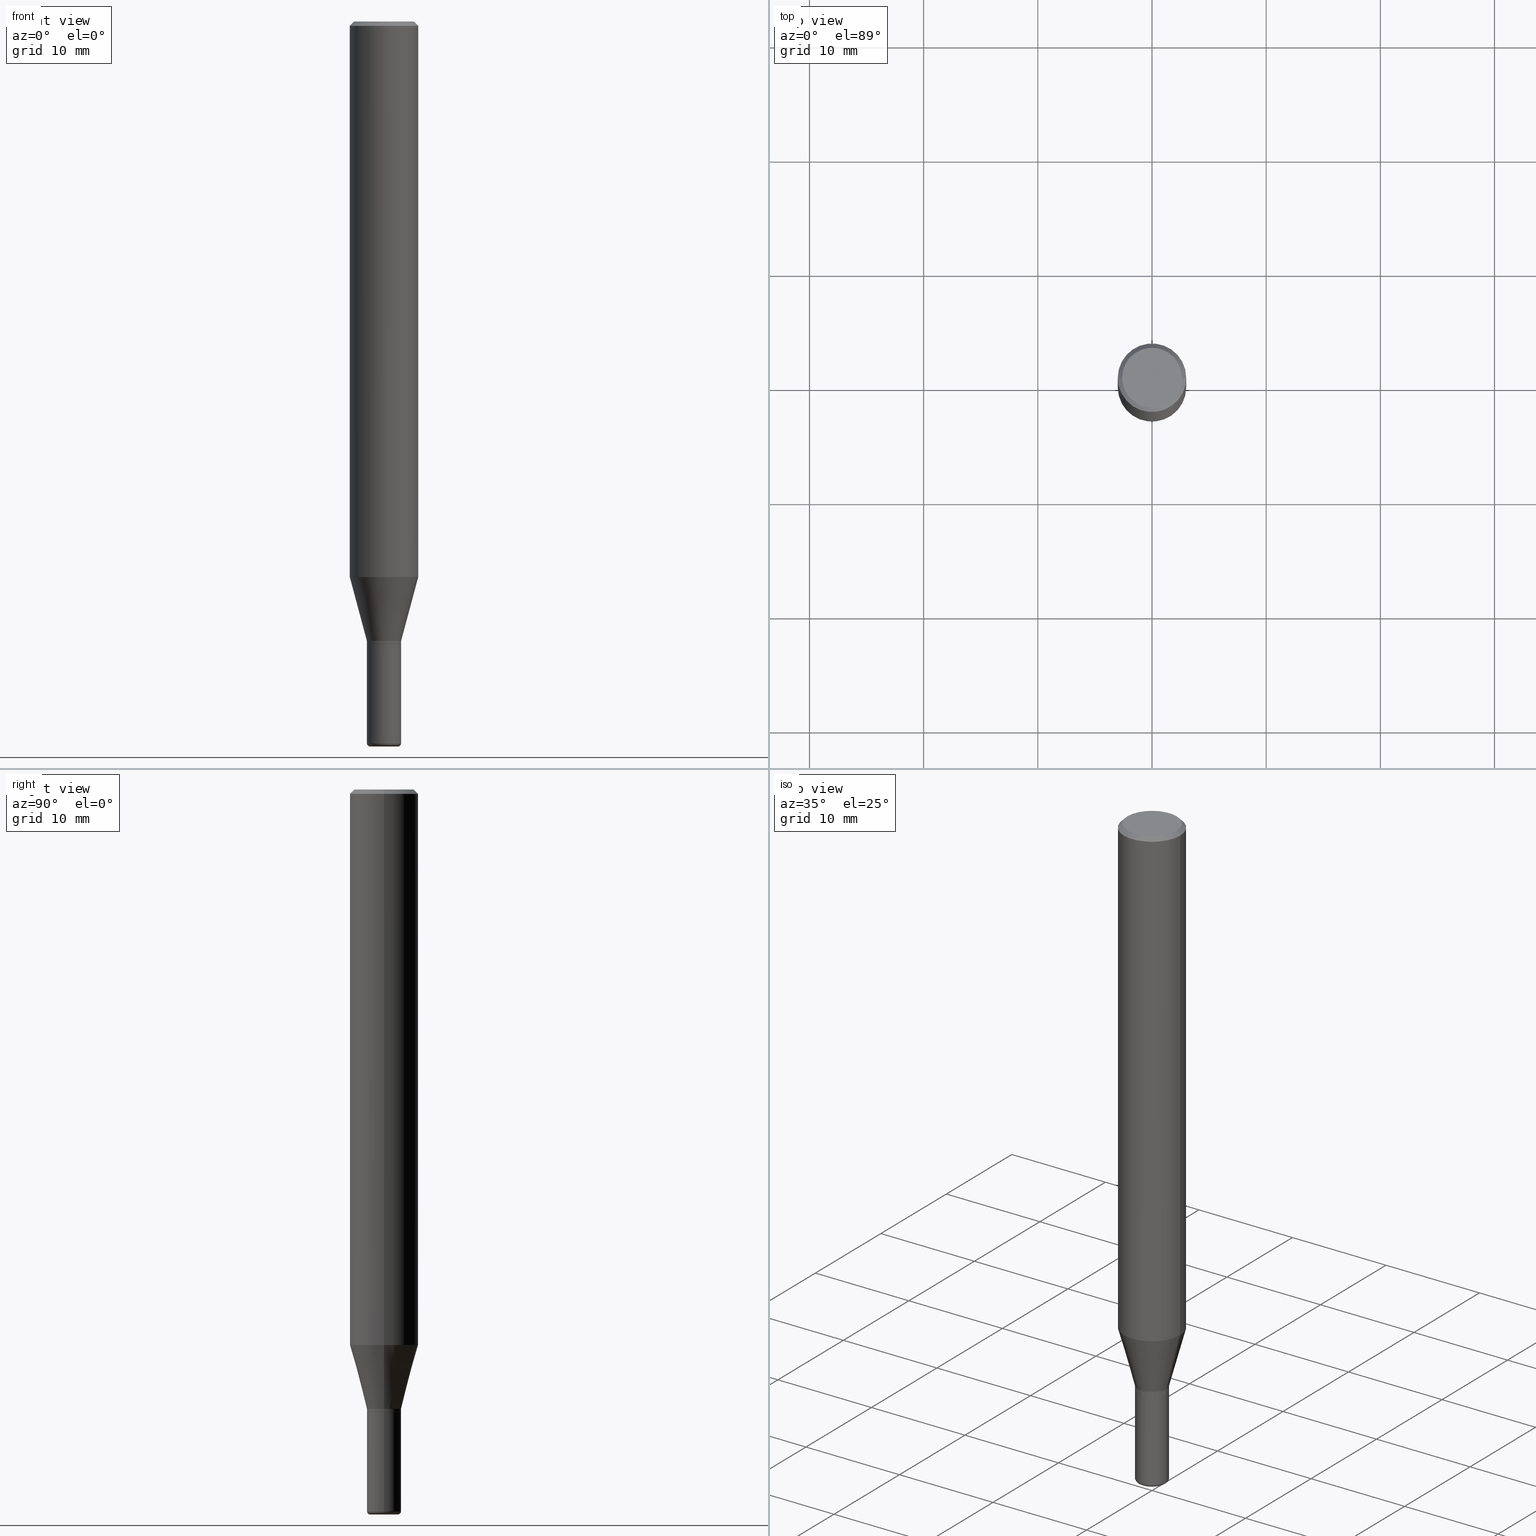
[diagram: canonical four-view strip — front | top / right | iso, engineering-drawing reading convention]
A machine part, canonical four-view strip (front | top / right | iso — engineering-drawing reading convention). The complete STEP part file that produces these views, byte-faithful:
ISO-10303-21;
HEADER;
FILE_DESCRIPTION (( 'STEP AP203' ),
    '1' );
FILE_NAME ('05363.STEP',
    '2024-02-29T19:38:18',
    ( '' ),
    ( '' ),
    'SwSTEP 2.0',
    'SolidWorks 2023',
    '' );
FILE_SCHEMA (( 'CONFIG_CONTROL_DESIGN' ));
ENDSEC;

DATA;
#1 = VERTEX_POINT ( 'NONE', #14 ) ;
#2 = CALENDAR_DATE ( 2024, 29, 2 ) ;
#3 = DIRECTION ( 'NONE',  ( 1.000000000000000000, -6.982962677686265133E-15, 0.000000000000000000 ) ) ;
#4 = AXIS2_PLACEMENT_3D ( 'NONE', #174, #138, #466 ) ;
#5 = MANIFOLD_SOLID_BREP ( 'Body-Move/Copy2[1]', #63 ) ;
#6 = ORIENTED_EDGE ( 'NONE', *, *, #321, .T. ) ;
#7 = APPROVAL_PERSON_ORGANIZATION ( #98, #360, #214 ) ;
#8 = DIRECTION ( 'NONE',  ( -2.445468806185136597E-29, 3.491481338843145583E-15, 1.000000000000000000 ) ) ;
#9 = ORIENTED_EDGE ( 'NONE', *, *, #379, .F. ) ;
#10 = DIRECTION ( 'NONE',  ( -2.445468806185136597E-29, 3.491481338843145583E-15, 1.000000000000000000 ) ) ;
#11 = CARTESIAN_POINT ( 'NONE',  ( 5.247242417431447608E-29, -7.491671508755737816E-15, -2.145700000000000163 ) ) ;
#12 = DIRECTION ( 'NONE',  ( 1.000000000000000000, -6.982962677686273021E-15, 0.000000000000000000 ) ) ;
#13 = AXIS2_PLACEMENT_3D ( 'NONE', #356, #517, #236 ) ;
#14 = CARTESIAN_POINT ( 'NONE',  ( -0.05855000000000004645, -7.072999509794088809E-15, -2.145700000000000163 ) ) ;
#15 = CC_DESIGN_APPROVAL ( #411, ( #240 ) ) ;
#16 = DIRECTION ( 'NONE',  ( -6.982962677686266711E-15, -1.000000000000000000, 3.491481338843145583E-15 ) ) ;
#17 = DIRECTION ( 'NONE',  ( 1.000000000000000000, -6.982962677686266711E-15, 4.876176775795935232E-29 ) ) ;
#18 = COORDINATED_UNIVERSAL_TIME_OFFSET ( 5, 0, .BEHIND. ) ;
#19 = CC_DESIGN_PERSON_AND_ORGANIZATION_ASSIGNMENT ( #396, #36, ( #136 ) ) ;
#20 = ADVANCED_FACE ( 'NONE', ( #483 ), #345, .T. ) ;
#21 = ORGANIZATION ( 'UNSPECIFIED', 'UNSPECIFIED', '' ) ;
#22 = DIRECTION ( 'NONE',  ( 0.000000000000000000, 0.000000000000000000, 1.000000000000000000 ) ) ;
#23 = DIRECTION ( 'NONE',  ( -2.445468806185136597E-29, 3.491481338843145583E-15, 1.000000000000000000 ) ) ;
#24 = APPROVAL ( #484, 'UNSPECIFIED' ) ;
#25 = FACE_OUTER_BOUND ( 'NONE', #195, .T. ) ;
#26 = CONICAL_SURFACE ( 'NONE', #325, 0.05905000000000002608, 0.2617993877991494633 ) ;
#27 = VECTOR ( 'NONE', #289, 39.37007874015748854 ) ;
#28 = DIRECTION ( 'NONE',  ( -2.445468806185136877E-29, 3.491481338843145188E-15, 1.000000000000000000 ) ) ;
#29 = AXIS2_PLACEMENT_3D ( 'NONE', #50, #8, #161 ) ;
#30 = CARTESIAN_POINT ( 'NONE',  ( 0.1180999999999999966, -7.512000309050311391E-15, -1.915322399813057963 ) ) ;
#31 = DIRECTION ( 'NONE',  ( 1.000000000000000000, -6.982962677686265133E-15, 4.883557194083112901E-29 ) ) ;
#32 = EDGE_LOOP ( 'NONE', ( #282, #206, #73, #330 ) ) ;
#33 = DIRECTION ( 'NONE',  ( -2.445468806185136877E-29, 3.491481338843145188E-15, 1.000000000000000000 ) ) ;
#34 = ORIENTED_EDGE ( 'NONE', *, *, #286, .F. ) ;
#35 = ADVANCED_FACE ( 'NONE', ( #216 ), #491, .T. ) ;
#36 = PERSON_AND_ORGANIZATION_ROLE ( 'design_supplier' ) ;
#37 = DIRECTION ( 'NONE',  ( 1.000000000000000000, -6.982962677686265133E-15, 4.883557194083112901E-29 ) ) ;
#38 = ORIENTED_EDGE ( 'NONE', *, *, #95, .T. ) ;
#39 = CC_DESIGN_PERSON_AND_ORGANIZATION_ASSIGNMENT ( #218, #217, ( #347 ) ) ;
#40 = EDGE_LOOP ( 'NONE', ( #38, #64, #70, #474 ) ) ;
#41 = CARTESIAN_POINT ( 'NONE',  ( 5.247242417431447608E-29, -7.491671508755737816E-15, -2.145700000000000163 ) ) ;
#42 = EDGE_LOOP ( 'NONE', ( #317, #149 ) ) ;
#43 = DIRECTION ( 'NONE',  ( -2.445468806185136597E-29, 3.491481338843145583E-15, 1.000000000000000000 ) ) ;
#44 = CARTESIAN_POINT ( 'NONE',  ( 0.05905000000000033833, -9.099847813426891590E-15, -2.488199999999999967 ) ) ;
#45 = ORIENTED_EDGE ( 'NONE', *, *, #499, .T. ) ;
#46 = EDGE_CURVE ( 'NONE', #54, #127, #333, .T. ) ;
#47 = PLANE ( 'NONE',  #299 ) ;
#48 = DIRECTION ( 'NONE',  ( 0.7071067811865483499, -7.319954787623257623E-15, -0.7071067811865466846 ) ) ;
#49 = CALENDAR_DATE ( 2024, 29, 2 ) ;
#50 = CARTESIAN_POINT ( 'NONE',  ( 0.000000000000000000, 0.000000000000000000, 0.000000000000000000 ) ) ;
#51 = EDGE_LOOP ( 'NONE', ( #354, #438, #368, #481 ) ) ;
#52 = CARTESIAN_POINT ( 'NONE',  ( 5.222787729369597184E-29, -7.456756695367306166E-15, -2.135699999999999932 ) ) ;
#53 = AXIS2_PLACEMENT_3D ( 'NONE', #181, #274, #426 ) ;
#54 = VERTEX_POINT ( 'NONE', #303 ) ;
#55 = DIRECTION ( 'NONE',  ( -0.2588190451025207395, 5.211531920934546309E-15, 0.9659258262890682012 ) ) ;
#56 =( CONVERSION_BASED_UNIT ( 'INCH', #518 ) LENGTH_UNIT ( ) NAMED_UNIT ( #79 ) );
#57 = CARTESIAN_POINT ( 'NONE',  ( 4.123439461174264426E-16, 0.05904999999999250432, -2.145700000000000163 ) ) ;
#58 = APPROVAL_DATE_TIME ( #91, #360 ) ;
#59 = AXIS2_PLACEMENT_3D ( 'NONE', #506, #193, #229 ) ;
#60 = CARTESIAN_POINT ( 'NONE',  ( 0.05905000000000005383, -7.902269714203691232E-15, -2.145200000000000440 ) ) ;
#61 = CIRCLE ( 'NONE', #359, 0.01180000000000034494 ) ;
#62 = APPROVAL_ROLE ( '' ) ;
#63 = CLOSED_SHELL ( 'NONE', ( #178, #210, #242, #35, #508, #387 ) ) ;
#64 = ORIENTED_EDGE ( 'NONE', *, *, #163, .T. ) ;
#65 = CONICAL_SURFACE ( 'NONE', #212, 0.1180999999999999966, 0.7853981633974495002 ) ;
#66 = PRODUCT_RELATED_PRODUCT_CATEGORY ( 'detail', '', ( #347 ) ) ;
#67 = DIRECTION ( 'NONE',  ( -2.445468806185136597E-29, 3.491481338843145583E-15, 1.000000000000000000 ) ) ;
#68 = ORIENTED_EDGE ( 'NONE', *, *, #351, .T. ) ;
#69 = DIRECTION ( 'NONE',  ( -2.445468806185136597E-29, 3.491481338843145583E-15, 1.000000000000000000 ) ) ;
#70 = ORIENTED_EDGE ( 'NONE', *, *, #294, .F. ) ;
#71 = DATE_AND_TIME ( #2, #399 ) ;
#72 = CARTESIAN_POINT ( 'NONE',  ( -0.05905000000000017180, 4.195754854663403804E-16, -2.904631170795530300E-30 ) ) ;
#73 = ORIENTED_EDGE ( 'NONE', *, *, #177, .T. ) ;
#74 = ADVANCED_FACE ( 'NONE', ( #373 ), #26, .T. ) ;
#75 = AXIS2_PLACEMENT_3D ( 'NONE', #292, #43, #3 ) ;
#76 = ORIENTED_EDGE ( 'NONE', *, *, #488, .T. ) ;
#77 = ORIENTED_EDGE ( 'NONE', *, *, #257, .F. ) ;
#78 = LINE ( 'NONE', #338, #221 ) ;
#79 = DIMENSIONAL_EXPONENTS ( 1.000000000000000000, 0.000000000000000000, 0.000000000000000000, 0.000000000000000000, 0.000000000000000000, 0.000000000000000000, 0.000000000000000000 ) ;
#80 = ORIENTED_EDGE ( 'NONE', *, *, #316, .T. ) ;
#81 = FACE_OUTER_BOUND ( 'NONE', #32, .T. ) ;
#82 = VERTEX_POINT ( 'NONE', #453 ) ;
#83 = CARTESIAN_POINT ( 'NONE',  ( -0.05905000000000002608, -6.442671327891926197E-15, -2.135699999999999932 ) ) ;
#84 = EDGE_CURVE ( 'NONE', #389, #322, #494, .T. ) ;
#85 = CARTESIAN_POINT ( 'NONE',  ( 0.000000000000000000, 0.000000000000000000, 0.000000000000000000 ) ) ;
#86 = DIRECTION ( 'NONE',  ( -2.445468806185136597E-29, 3.491481338843145583E-15, 1.000000000000000000 ) ) ;
#87 = EDGE_CURVE ( 'NONE', #1, #241, #468, .T. ) ;
#88 = ORIENTED_EDGE ( 'NONE', *, *, #391, .T. ) ;
#89 = ADVANCED_FACE ( 'NONE', ( #93 ), #418, .T. ) ;
#90 = DIRECTION ( 'NONE',  ( -2.445468806185136597E-29, 3.491481338843145583E-15, 1.000000000000000000 ) ) ;
#91 = DATE_AND_TIME ( #455, #340 ) ;
#92 = AXIS2_PLACEMENT_3D ( 'NONE', #465, #196, #37 ) ;
#93 = FACE_OUTER_BOUND ( 'NONE', #146, .T. ) ;
#94 = TOROIDAL_SURFACE ( 'NONE', #283, 0.04724999999999999339, 0.01180000000000034494 ) ;
#95 = EDGE_CURVE ( 'NONE', #487, #410, #155, .T. ) ;
#96 = APPLICATION_PROTOCOL_DEFINITION ( 'international standard', 'config_control_design', 1994, #436 ) ;
#97 = CARTESIAN_POINT ( 'NONE',  ( 0.1180999999999999966, -8.246878922347480654E-16, 5.758764772215000440E-30 ) ) ;
#98 = PERSON_AND_ORGANIZATION ( #377, #21 ) ;
#99 = AXIS2_PLACEMENT_3D ( 'NONE', #231, #189, #117 ) ;
#100 = DIRECTION ( 'NONE',  ( 1.000000000000000000, -6.982962677686266711E-15, 0.000000000000000000 ) ) ;
#101 = VECTOR ( 'NONE', #288, 39.37007874015748143 ) ;
#102 = FACE_OUTER_BOUND ( 'NONE', #211, .T. ) ;
#103 = CARTESIAN_POINT ( 'NONE',  ( 5.222787729369597184E-29, -7.456756695367306166E-15, -2.135699999999999932 ) ) ;
#104 = EDGE_CURVE ( 'NONE', #443, #232, #428, .T. ) ;
#105 = ADVANCED_FACE ( 'NONE', ( #497 ), #353, .T. ) ;
#106 = ORIENTED_EDGE ( 'NONE', *, *, #461, .T. ) ;
#107 = LOCAL_TIME ( 14, 38, 18.00000000000000000, #239 ) ;
#108 = CARTESIAN_POINT ( 'NONE',  ( 5.247242417431447608E-29, -7.491671508755737816E-15, -2.145700000000000163 ) ) ;
#109 = EDGE_LOOP ( 'NONE', ( #509, #435, #366, #252 ) ) ;
#110 = LINE ( 'NONE', #145, #463 ) ;
#111 = VERTEX_POINT ( 'NONE', #346 ) ;
#112 = DIRECTION ( 'NONE',  ( 1.000000000000000000, -6.982962677686258822E-15, 0.000000000000000000 ) ) ;
#113 = ORIENTED_EDGE ( 'NONE', *, *, #142, .F. ) ;
#114 = AXIS2_PLACEMENT_3D ( 'NONE', #85, #169, #342 ) ;
#115 = AXIS2_PLACEMENT_3D ( 'NONE', #141, #312, #100 ) ;
#116 = DIRECTION ( 'NONE',  ( 1.000000000000000000, -6.982962677686258822E-15, 0.000000000000000000 ) ) ;
#117 = DIRECTION ( 'NONE',  ( -1.000000000000000000, 6.982962677686265922E-15, -4.876176775795935793E-29 ) ) ;
#118 = ORIENTED_EDGE ( 'NONE', *, *, #273, .F. ) ;
#119 = DATE_TIME_ROLE ( 'creation_date' ) ;
#120 = ADVANCED_FACE ( 'NONE', ( #265 ), #376, .T. ) ;
#121 = ORIENTED_EDGE ( 'NONE', *, *, #177, .F. ) ;
#122 = FACE_OUTER_BOUND ( 'NONE', #165, .T. ) ;
#123 = CARTESIAN_POINT ( 'NONE',  ( -0.1180999999999999966, 7.723156721521010848E-16, -0.01499999999999995781 ) ) ;
#124 = APPROVAL_ROLE ( '' ) ;
#125 = AXIS2_PLACEMENT_3D ( 'NONE', #108, #67, #112 ) ;
#126 = DIRECTION ( 'NONE',  ( 1.000000000000000000, -6.982962677686343230E-15, 0.000000000000000000 ) ) ;
#127 = VERTEX_POINT ( 'NONE', #175 ) ;
#128 = CIRCLE ( 'NONE', #424, 0.1180999999999999966 ) ;
#129 = CARTESIAN_POINT ( 'NONE',  ( 0.04724999999999999339, -9.058648333628542528E-15, -2.500000000000000444 ) ) ;
#130 = DIRECTION ( 'NONE',  ( -2.445468806185136597E-29, 3.491481338843145583E-15, 1.000000000000000000 ) ) ;
#131 = CARTESIAN_POINT ( 'NONE',  ( 5.246019683028355928E-29, -7.489925768086317101E-15, -2.145200000000000440 ) ) ;
#132 = DIRECTION ( 'NONE',  ( -2.445468806185136597E-29, 3.491481338843145583E-15, 1.000000000000000000 ) ) ;
#133 = DATE_AND_TIME ( #49, #205 ) ;
#134 = AXIS2_PLACEMENT_3D ( 'NONE', #305, #132, #456 ) ;
#135 = CIRCLE ( 'NONE', #256, 0.04724999999999999339 ) ;
#136 = PRODUCT_DEFINITION_FORMATION_WITH_SPECIFIED_SOURCE ( 'ANY', '', #347, .NOT_KNOWN. ) ;
#137 = COORDINATED_UNIVERSAL_TIME_OFFSET ( 5, 0, .BEHIND. ) ;
#138 = DIRECTION ( 'NONE',  ( -2.438088387897960049E-29, 3.491481338843145188E-15, 1.000000000000000000 ) ) ;
#139 = DIRECTION ( 'NONE',  ( -1.000000000000000000, 6.982962677686266711E-15, 0.000000000000000000 ) ) ;
#140 = APPLICATION_CONTEXT ( 'configuration controlled 3d designs of mechanical parts and assemblies' ) ;
#141 = CARTESIAN_POINT ( 'NONE',  ( 3.668203209277694140E-31, -5.237222008264703607E-17, -0.01499999999999995781 ) ) ;
#142 = EDGE_CURVE ( 'NONE', #319, #322, #311, .T. ) ;
#143 = CIRCLE ( 'NONE', #447, 0.05904999999999999832 ) ;
#144 = FACE_OUTER_BOUND ( 'NONE', #201, .T. ) ;
#145 = CARTESIAN_POINT ( 'NONE',  ( 0.05855000000000004645, -7.900523973534268940E-15, -2.145700000000000163 ) ) ;
#146 = EDGE_LOOP ( 'NONE', ( #80, #375, #121, #113 ) ) ;
#147 = DIRECTION ( 'NONE',  ( 1.000000000000000000, -6.982962677686269866E-15, 0.000000000000000000 ) ) ;
#148 = EDGE_LOOP ( 'NONE', ( #77, #336, #478, #234 ) ) ;
#149 = ORIENTED_EDGE ( 'NONE', *, *, #433, .T. ) ;
#150 = CALENDAR_DATE ( 2024, 29, 2 ) ;
#151 = EDGE_LOOP ( 'NONE', ( #6, #45, #398, #162 ) ) ;
#152 = CARTESIAN_POINT ( 'NONE',  ( 0.05905000000000003302, -4.123439461173742792E-16, 2.879382386107501972E-30 ) ) ;
#153 = PLANE ( 'NONE',  #99 ) ;
#154 = EDGE_LOOP ( 'NONE', ( #393, #68, #402, #247 ) ) ;
#155 = CIRCLE ( 'NONE', #224, 0.04724999999999999339 ) ;
#156 = CIRCLE ( 'NONE', #226, 0.05855000000000004645 ) ;
#157 = PERSON_AND_ORGANIZATION ( #377, #21 ) ;
#158 = LINE ( 'NONE', #445, #267 ) ;
#159 = VERTEX_POINT ( 'NONE', #60 ) ;
#160 = CC_DESIGN_PERSON_AND_ORGANIZATION_ASSIGNMENT ( #361, #513, ( #240 ) ) ;
#161 = DIRECTION ( 'NONE',  ( 1.000000000000000000, -6.982962677686265922E-15, 4.876176775795935232E-29 ) ) ;
#162 = ORIENTED_EDGE ( 'NONE', *, *, #198, .F. ) ;
#163 = EDGE_CURVE ( 'NONE', #410, #443, #295, .T. ) ;
#164 = LINE ( 'NONE', #480, #511 ) ;
#165 = EDGE_LOOP ( 'NONE', ( #400, #470, #381, #191 ) ) ;
#166 = CONICAL_SURFACE ( 'NONE', #125, 0.05855000000000004645, 0.7853981633978239785 ) ;
#167 = DIRECTION ( 'NONE',  ( -2.445468806185136877E-29, 3.491481338843145188E-15, 1.000000000000000000 ) ) ;
#168 = CC_DESIGN_DATE_AND_TIME_ASSIGNMENT ( #133, #416, ( #240 ) ) ;
#169 = DIRECTION ( 'NONE',  ( -2.445468806185136597E-29, 3.491481338843145583E-15, 1.000000000000000000 ) ) ;
#170 = AXIS2_PLACEMENT_3D ( 'NONE', #261, #22, #420 ) ;
#171 = DIRECTION ( 'NONE',  ( -2.445468806185136597E-29, 3.491481338843145583E-15, 1.000000000000000000 ) ) ;
#172 = CARTESIAN_POINT ( 'NONE',  ( 5.222787729369597184E-29, -7.456756695367306166E-15, -2.135699999999999932 ) ) ;
#173 = APPLICATION_PROTOCOL_DEFINITION ( 'international standard', 'config_control_design', 1994, #140 ) ;
#174 = CARTESIAN_POINT ( 'NONE',  ( 5.247242417431447608E-29, -7.491671508755737816E-15, -2.145700000000000163 ) ) ;
#175 = CARTESIAN_POINT ( 'NONE',  ( -0.1180999999999999966, -2.530691347516425921E-15, -0.01499999999999995781 ) ) ;
#176 = CARTESIAN_POINT ( 'NONE',  ( -0.04724999999999999339, -8.351772424662866864E-15, -2.488199999999999967 ) ) ;
#177 = EDGE_CURVE ( 'NONE', #322, #127, #415, .T. ) ;
#178 = ADVANCED_FACE ( 'NONE', ( #270 ), #386, .T. ) ;
#179 = AXIS2_PLACEMENT_3D ( 'NONE', #300, #130, #17 ) ;
#180 = CIRCLE ( 'NONE', #190, 0.1031000000000000111 ) ;
#181 = CARTESIAN_POINT ( 'NONE',  ( 0.000000000000000000, 0.000000000000000000, 0.000000000000000000 ) ) ;
#182 = DIRECTION ( 'NONE',  ( -2.445468806185136597E-29, 3.491481338843145583E-15, 1.000000000000000000 ) ) ;
#183 = ADVANCED_FACE ( 'NONE', ( #25 ), #166, .T. ) ;
#184 = ORIENTED_EDGE ( 'NONE', *, *, #95, .F. ) ;
#185 = CARTESIAN_POINT ( 'NONE',  ( 0.1180999999999999966, -8.770601123173951446E-16, -0.01499999999999995781 ) ) ;
#186 = EDGE_LOOP ( 'NONE', ( #277, #208, #515, #9 ) ) ;
#187 = DIRECTION ( 'NONE',  ( 0.7071067811868130271, -2.468850131085038979E-15, 0.7071067811862817853 ) ) ;
#188 = ADVANCED_FACE ( 'NONE', ( #365 ), #153, .F. ) ;
#189 = DIRECTION ( 'NONE',  ( 2.438088387897960049E-29, -3.491481338843145188E-15, -1.000000000000000000 ) ) ;
#190 = AXIS2_PLACEMENT_3D ( 'NONE', #473, #182, #280 ) ;
#191 = ORIENTED_EDGE ( 'NONE', *, *, #348, .F. ) ;
#192 = SECURITY_CLASSIFICATION_LEVEL ( 'unclassified' ) ;
#193 = DIRECTION ( 'NONE',  ( -2.445468806185136597E-29, 3.491481338843145583E-15, 1.000000000000000000 ) ) ;
#194 = CIRCLE ( 'NONE', #309, 0.05905000000000002608 ) ;
#195 = EDGE_LOOP ( 'NONE', ( #467, #227, #244, #427 ) ) ;
#196 = DIRECTION ( 'NONE',  ( -2.445468806185136597E-29, 3.491481338843145583E-15, 1.000000000000000000 ) ) ;
#197 = ORIENTED_EDGE ( 'NONE', *, *, #449, .F. ) ;
#198 = EDGE_CURVE ( 'NONE', #358, #319, #284, .T. ) ;
#199 = CARTESIAN_POINT ( 'NONE',  ( 5.247242417431447608E-29, -7.491671508755737816E-15, -2.145700000000000163 ) ) ;
#200 = CC_DESIGN_DATE_AND_TIME_ASSIGNMENT ( #334, #119, ( #441 ) ) ;
#201 = EDGE_LOOP ( 'NONE', ( #118, #278 ) ) ;
#202 = AXIS2_PLACEMENT_3D ( 'NONE', #323, #313, #263 ) ;
#203 = CONICAL_SURFACE ( 'NONE', #219, 0.05905000000000002608, 0.2617993877991494633 ) ;
#204 = CARTESIAN_POINT ( 'NONE',  ( 0.05905000000000017180, -4.123439461173752653E-16, 2.879382386107508278E-30 ) ) ;
#205 = LOCAL_TIME ( 14, 38, 18.00000000000000000, #18 ) ;
#206 = ORIENTED_EDGE ( 'NONE', *, *, #84, .T. ) ;
#207 = CARTESIAN_POINT ( 'NONE',  ( 5.246019683028355928E-29, -7.489925768086317101E-15, -2.145200000000000440 ) ) ;
#208 = ORIENTED_EDGE ( 'NONE', *, *, #257, .T. ) ;
#209 = CARTESIAN_POINT ( 'NONE',  ( 3.668203209277694140E-31, -5.237222008264703607E-17, -0.01499999999999995781 ) ) ;
#210 = ADVANCED_FACE ( 'NONE', ( #339 ), #302, .T. ) ;
#211 = EDGE_LOOP ( 'NONE', ( #76, #106 ) ) ;
#212 = AXIS2_PLACEMENT_3D ( 'NONE', #248, #374, #403 ) ;
#213 = CARTESIAN_POINT ( 'NONE',  ( 0.05905000000000002608, -7.869100641484681875E-15, -2.135699999999999932 ) ) ;
#214 = APPROVAL_ROLE ( '' ) ;
#215 = LOCAL_TIME ( 14, 38, 18.00000000000000000, #423 ) ;
#216 = FACE_OUTER_BOUND ( 'NONE', #148, .T. ) ;
#217 = PERSON_AND_ORGANIZATION_ROLE ( 'design_owner' ) ;
#218 = PERSON_AND_ORGANIZATION ( #377, #21 ) ;
#219 = AXIS2_PLACEMENT_3D ( 'NONE', #52, #90, #304 ) ;
#220 = PERSON_AND_ORGANIZATION ( #377, #21 ) ;
#221 = VECTOR ( 'NONE', #405, 39.37007874015748854 ) ;
#222 = CARTESIAN_POINT ( 'NONE',  ( 3.668203209277694140E-31, -5.237222008264703607E-17, -0.01499999999999995781 ) ) ;
#223 = DIRECTION ( 'NONE',  ( -1.000000000000000000, 6.982962677686265922E-15, -4.876176775795935793E-29 ) ) ;
#224 = AXIS2_PLACEMENT_3D ( 'NONE', #259, #262, #388 ) ;
#225 = CARTESIAN_POINT ( 'NONE',  ( 6.084815483549856310E-29, -8.687503867309514303E-15, -2.488199999999999967 ) ) ;
#226 = AXIS2_PLACEMENT_3D ( 'NONE', #430, #69, #315 ) ;
#227 = ORIENTED_EDGE ( 'NONE', *, *, #87, .T. ) ;
#228 = AXIS2_PLACEMENT_3D ( 'NONE', #207, #10, #451 ) ;
#229 = DIRECTION ( 'NONE',  ( 1.000000000000000000, -6.982962677686265133E-15, 0.000000000000000000 ) ) ;
#230 = DIRECTION ( 'NONE',  ( -2.445468806185136597E-29, 3.491481338843145583E-15, 1.000000000000000000 ) ) ;
#231 = CARTESIAN_POINT ( 'NONE',  ( 7.199434520694541042E-16, 0.1031000000000000111, -3.599717260347282847E-16 ) ) ;
#232 = VERTEX_POINT ( 'NONE', #44 ) ;
#233 = EDGE_CURVE ( 'NONE', #410, #487, #135, .T. ) ;
#234 = ORIENTED_EDGE ( 'NONE', *, *, #461, .F. ) ;
#235 = PERSON_AND_ORGANIZATION_ROLE ( 'creator' ) ;
#236 = DIRECTION ( 'NONE',  ( 1.000000000000000000, -6.982962677686265922E-15, 0.000000000000000000 ) ) ;
#237 = VECTOR ( 'NONE', #421, 39.37007874015748143 ) ;
#238 = ORIENTED_EDGE ( 'NONE', *, *, #348, .T. ) ;
#239 = COORDINATED_UNIVERSAL_TIME_OFFSET ( 5, 0, .BEHIND. ) ;
#240 = SECURITY_CLASSIFICATION ( '', '', #192 ) ;
#241 = VERTEX_POINT ( 'NONE', #308 ) ;
#242 = ADVANCED_FACE ( 'NONE', ( #102 ), #264, .F. ) ;
#243 = LINE ( 'NONE', #72, #337 ) ;
#244 = ORIENTED_EDGE ( 'NONE', *, *, #286, .T. ) ;
#245 = CARTESIAN_POINT ( 'NONE',  ( -0.05905000000000033833, -7.670012202566284200E-15, -2.488199999999999967 ) ) ;
#246 = DIRECTION ( 'NONE',  ( 1.000000000000000000, -6.982962677686266711E-15, 4.876176775795935232E-29 ) ) ;
#247 = ORIENTED_EDGE ( 'NONE', *, *, #516, .F. ) ;
#248 = CARTESIAN_POINT ( 'NONE',  ( 3.668203209277694140E-31, -5.237222008264703607E-17, -0.01499999999999995781 ) ) ;
#249 = DIRECTION ( 'NONE',  ( 1.000000000000000000, -6.982962677686269866E-15, 0.000000000000000000 ) ) ;
#250 = CARTESIAN_POINT ( 'NONE',  ( 0.000000000000000000, 0.000000000000000000, 0.000000000000000000 ) ) ;
#251 = ADVANCED_FACE ( 'NONE', ( #144 ), #460, .F. ) ;
#252 = ORIENTED_EDGE ( 'NONE', *, *, #104, .F. ) ;
#253 = DIRECTION ( 'NONE',  ( 1.000000000000000000, -6.982962677686273021E-15, 0.000000000000000000 ) ) ;
#254 = ORIENTED_EDGE ( 'NONE', *, *, #142, .T. ) ;
#255 = VECTOR ( 'NONE', #48, 39.37007874015748143 ) ;
#256 = AXIS2_PLACEMENT_3D ( 'NONE', #419, #23, #503 ) ;
#257 = EDGE_CURVE ( 'NONE', #443, #371, #243, .T. ) ;
#258 = AXIS2_PLACEMENT_3D ( 'NONE', #250, #485, #448 ) ;
#259 = CARTESIAN_POINT ( 'NONE',  ( 6.113672015462842613E-29, -8.728703347107866520E-15, -2.500000000000000444 ) ) ;
#260 = EDGE_CURVE ( 'NONE', #159, #358, #364, .T. ) ;
#261 = CARTESIAN_POINT ( 'NONE',  ( 0.000000000000000000, 0.000000000000000000, 0.000000000000000000 ) ) ;
#262 = DIRECTION ( 'NONE',  ( -2.445468806185136597E-29, 3.491481338843145583E-15, 1.000000000000000000 ) ) ;
#263 = DIRECTION ( 'NONE',  ( 1.000000000000000000, -6.982962677686265922E-15, 0.000000000000000000 ) ) ;
#264 = PLANE ( 'NONE',  #457 ) ;
#265 = FACE_OUTER_BOUND ( 'NONE', #51, .T. ) ;
#266 = UNCERTAINTY_MEASURE_WITH_UNIT (LENGTH_MEASURE( 1.000000000000000082E-05 ), #56, 'distance_accuracy_value', 'NONE');
#267 = VECTOR ( 'NONE', #167, 39.37007874015748143 ) ;
#268 = PERSON_AND_ORGANIZATION_ROLE ( 'creator' ) ;
#269 = DIRECTION ( 'NONE',  ( 2.438088387897960049E-29, -3.491481338843145188E-15, -1.000000000000000000 ) ) ;
#270 = FACE_OUTER_BOUND ( 'NONE', #40, .T. ) ;
#271 = CC_DESIGN_PERSON_AND_ORGANIZATION_ASSIGNMENT ( #157, #235, ( #136 ) ) ;
#272 = EDGE_CURVE ( 'NONE', #54, #389, #180, .T. ) ;
#273 = EDGE_CURVE ( 'NONE', #241, #1, #156, .T. ) ;
#274 = DIRECTION ( 'NONE',  ( -2.445468806185136597E-29, 3.491481338843145583E-15, 1.000000000000000000 ) ) ;
#275 = EDGE_LOOP ( 'NONE', ( #184, #414 ) ) ;
#276 = APPROVAL_PERSON_ORGANIZATION ( #306, #411, #62 ) ;
#277 = ORIENTED_EDGE ( 'NONE', *, *, #294, .T. ) ;
#278 = ORIENTED_EDGE ( 'NONE', *, *, #87, .F. ) ;
#279 = APPROVAL_DATE_TIME ( #71, #24 ) ;
#280 = DIRECTION ( 'NONE',  ( 1.000000000000000000, -6.982962677686265922E-15, 4.876176775795935232E-29 ) ) ;
#281 = VECTOR ( 'NONE', #28, 39.37007874015748143 ) ;
#282 = ORIENTED_EDGE ( 'NONE', *, *, #433, .F. ) ;
#283 = AXIS2_PLACEMENT_3D ( 'NONE', #225, #392, #31 ) ;
#284 = LINE ( 'NONE', #439, #27 ) ;
#285 = DIRECTION ( 'NONE',  ( -2.445468806185136597E-29, 3.491481338843145583E-15, 1.000000000000000000 ) ) ;
#286 = EDGE_CURVE ( 'NONE', #241, #159, #110, .T. ) ;
#287 = SHAPE_DEFINITION_REPRESENTATION ( #383, #408 ) ;
#288 = DIRECTION ( 'NONE',  ( -2.445468806185136877E-29, 3.491481338843145188E-15, 1.000000000000000000 ) ) ;
#289 = DIRECTION ( 'NONE',  ( 0.2588190451025207395, 1.565188264969626109E-15, 0.9659258262890682012 ) ) ;
#290 = ORIENTED_EDGE ( 'NONE', *, *, #384, .T. ) ;
#291 = CALENDAR_DATE ( 2024, 29, 2 ) ;
#292 = CARTESIAN_POINT ( 'NONE',  ( 4.683861182530489821E-29, -6.687312416815562340E-15, -1.915322399813057963 ) ) ;
#293 = DIRECTION ( 'NONE',  ( -0.7071067811865483499, 2.468850131082265738E-15, -0.7071067811865466846 ) ) ;
#294 = EDGE_CURVE ( 'NONE', #232, #443, #429, .T. ) ;
#295 = CIRCLE ( 'NONE', #502, 0.01180000000000034494 ) ;
#296 = COORDINATED_UNIVERSAL_TIME_OFFSET ( 5, 0, .BEHIND. ) ;
#297 = CARTESIAN_POINT ( 'NONE',  ( -0.04724999999999999339, -8.330450143152198523E-15, -2.500000000000000444 ) ) ;
#298 =( LENGTH_UNIT ( ) NAMED_UNIT ( * ) SI_UNIT ( $, .METRE. ) );
#299 = AXIS2_PLACEMENT_3D ( 'NONE', #372, #301, #378 ) ;
#300 = CARTESIAN_POINT ( 'NONE',  ( 0.000000000000000000, 0.000000000000000000, 0.000000000000000000 ) ) ;
#301 = DIRECTION ( 'NONE',  ( -2.438088387897960049E-29, 3.491481338843145188E-15, 1.000000000000000000 ) ) ;
#302 = CYLINDRICAL_SURFACE ( 'NONE', #422, 0.05905000000000017180 ) ;
#303 = CARTESIAN_POINT ( 'NONE',  ( -0.1031000000000000111, 7.461295621107775452E-16, -5.126375781645864005E-30 ) ) ;
#304 = DIRECTION ( 'NONE',  ( 1.000000000000000000, -6.982962677686269866E-15, 0.000000000000000000 ) ) ;
#305 = CARTESIAN_POINT ( 'NONE',  ( 0.000000000000000000, 0.000000000000000000, 0.000000000000000000 ) ) ;
#306 = PERSON_AND_ORGANIZATION ( #377, #21 ) ;
#307 = CIRCLE ( 'NONE', #326, 0.05905000000000002608 ) ;
#308 = CARTESIAN_POINT ( 'NONE',  ( 0.05855000000000004645, -7.900523973534268940E-15, -2.145700000000000163 ) ) ;
#309 = AXIS2_PLACEMENT_3D ( 'NONE', #103, #230, #147 ) ;
#310 = ADVANCED_FACE ( 'NONE', ( #397 ), #477, .T. ) ;
#311 = LINE ( 'NONE', #97, #237 ) ;
#312 = DIRECTION ( 'NONE',  ( -2.445468806185136597E-29, 3.491481338843145583E-15, 1.000000000000000000 ) ) ;
#313 = DIRECTION ( 'NONE',  ( -2.445468806185136597E-29, 3.491481338843145583E-15, 1.000000000000000000 ) ) ;
#314 = CC_DESIGN_SECURITY_CLASSIFICATION ( #240, ( #136 ) ) ;
#315 = DIRECTION ( 'NONE',  ( 1.000000000000000000, -6.982962677686258822E-15, 0.000000000000000000 ) ) ;
#316 = EDGE_CURVE ( 'NONE', #319, #327, #350, .T. ) ;
#317 = ORIENTED_EDGE ( 'NONE', *, *, #272, .T. ) ;
#318 = CARTESIAN_POINT ( 'NONE',  ( -0.1180999999999999966, -5.848161445882884932E-15, -1.915322399813057963 ) ) ;
#319 = VERTEX_POINT ( 'NONE', #30 ) ;
#320 = EDGE_LOOP ( 'NONE', ( #432, #290, #355, #34 ) ) ;
#321 = EDGE_CURVE ( 'NONE', #358, #394, #307, .T. ) ;
#322 = VERTEX_POINT ( 'NONE', #185 ) ;
#323 = CARTESIAN_POINT ( 'NONE',  ( 6.084815483549856310E-29, -8.687503867309514303E-15, -2.488199999999999967 ) ) ;
#324 = CARTESIAN_POINT ( 'NONE',  ( 5.247242417431447608E-29, -7.491671508755737816E-15, -2.145700000000000163 ) ) ;
#325 = AXIS2_PLACEMENT_3D ( 'NONE', #172, #446, #249 ) ;
#326 = AXIS2_PLACEMENT_3D ( 'NONE', #362, #514, #390 ) ;
#327 = VERTEX_POINT ( 'NONE', #318 ) ;
#328 =( GEOMETRIC_REPRESENTATION_CONTEXT ( 3 ) GLOBAL_UNCERTAINTY_ASSIGNED_CONTEXT ( ( #266 ) ) GLOBAL_UNIT_ASSIGNED_CONTEXT ( ( #56, #344, #462 ) ) REPRESENTATION_CONTEXT ( 'NONE', 'WORKASPACE' ) );
#329 = CARTESIAN_POINT ( 'NONE',  ( -0.05904999999999999832, -7.670012202566285777E-15, -2.145700000000000163 ) ) ;
#330 = ORIENTED_EDGE ( 'NONE', *, *, #46, .F. ) ;
#331 = DIRECTION ( 'NONE',  ( -2.445468806185136597E-29, 3.491481338843145583E-15, 1.000000000000000000 ) ) ;
#332 = EDGE_CURVE ( 'NONE', #327, #127, #158, .T. ) ;
#333 = LINE ( 'NONE', #123, #476 ) ;
#334 = DATE_AND_TIME ( #291, #215 ) ;
#335 = CARTESIAN_POINT ( 'NONE',  ( 0.04724999999999999339, -9.017448853830191888E-15, -2.488199999999999967 ) ) ;
#336 = ORIENTED_EDGE ( 'NONE', *, *, #104, .T. ) ;
#337 = VECTOR ( 'NONE', #33, 39.37007874015748143 ) ;
#338 = CARTESIAN_POINT ( 'NONE',  ( -0.05855000000000004645, -7.075648736968199221E-15, -2.145700000000000163 ) ) ;
#339 = FACE_OUTER_BOUND ( 'NONE', #186, .T. ) ;
#340 = LOCAL_TIME ( 14, 38, 18.00000000000000000, #137 ) ;
#341 = ADVANCED_FACE ( 'NONE', ( #122 ), #203, .T. ) ;
#342 = DIRECTION ( 'NONE',  ( 1.000000000000000000, -6.982962677686266711E-15, 4.876176775795936353E-29 ) ) ;
#343 = DIRECTION ( 'NONE',  ( 1.000000000000000000, -6.982962677686266711E-15, 0.000000000000000000 ) ) ;
#344 =( NAMED_UNIT ( * ) PLANE_ANGLE_UNIT ( ) SI_UNIT ( $, .RADIAN. ) );
#345 = CYLINDRICAL_SURFACE ( 'NONE', #114, 0.05905000000000003302 ) ;
#346 = CARTESIAN_POINT ( 'NONE',  ( 0.05904999999999999832, -7.904015454873111947E-15, -2.145700000000000163 ) ) ;
#347 = PRODUCT ( '05363', '05363', '', ( #413 ) ) ;
#348 = EDGE_CURVE ( 'NONE', #327, #319, #510, .T. ) ;
#349 = ADVANCED_FACE ( 'NONE', ( #81 ), #65, .T. ) ;
#350 = CIRCLE ( 'NONE', #59, 0.1180999999999999966 ) ;
#351 = EDGE_CURVE ( 'NONE', #82, #159, #437, .T. ) ;
#352 = DIRECTION ( 'NONE',  ( -2.445468806185136597E-29, 3.491481338843145583E-15, 1.000000000000000000 ) ) ;
#353 = CYLINDRICAL_SURFACE ( 'NONE', #53, 0.1180999999999999966 ) ;
#354 = ORIENTED_EDGE ( 'NONE', *, *, #84, .F. ) ;
#355 = ORIENTED_EDGE ( 'NONE', *, *, #391, .F. ) ;
#356 = CARTESIAN_POINT ( 'NONE',  ( 6.084815483549856310E-29, -8.687503867309514303E-15, -2.488199999999999967 ) ) ;
#357 = AXIS2_PLACEMENT_3D ( 'NONE', #222, #505, #139 ) ;
#358 = VERTEX_POINT ( 'NONE', #213 ) ;
#359 = AXIS2_PLACEMENT_3D ( 'NONE', #335, #16, #126 ) ;
#360 = APPROVAL ( #496, 'UNSPECIFIED' ) ;
#361 = PERSON_AND_ORGANIZATION ( #377, #21 ) ;
#362 = CARTESIAN_POINT ( 'NONE',  ( 5.222787729369597184E-29, -7.456756695367306166E-15, -2.135699999999999932 ) ) ;
#363 = EDGE_LOOP ( 'NONE', ( #450, #238, #254, #197 ) ) ;
#364 = LINE ( 'NONE', #152, #281 ) ;
#365 = FACE_OUTER_BOUND ( 'NONE', #42, .T. ) ;
#366 = ORIENTED_EDGE ( 'NONE', *, *, #417, .T. ) ;
#367 = DIRECTION ( 'NONE',  ( -2.445468806185136597E-29, 3.491481338843145583E-15, 1.000000000000000000 ) ) ;
#368 = ORIENTED_EDGE ( 'NONE', *, *, #46, .T. ) ;
#369 = CC_DESIGN_APPROVAL ( #360, ( #441 ) ) ;
#370 = CARTESIAN_POINT ( 'NONE',  ( 0.1031000000000000111, -7.849571885948548761E-16, 5.261941714946591942E-30 ) ) ;
#371 = VERTEX_POINT ( 'NONE', #329 ) ;
#372 = CARTESIAN_POINT ( 'NONE',  ( 6.199188644380781470E-29, -8.606238667193129794E-15, -2.500000000000000000 ) ) ;
#373 = FACE_OUTER_BOUND ( 'NONE', #151, .T. ) ;
#374 = DIRECTION ( 'NONE',  ( 2.445468806185136597E-29, -3.491481338843145583E-15, -1.000000000000000000 ) ) ;
#375 = ORIENTED_EDGE ( 'NONE', *, *, #332, .T. ) ;
#376 = CONICAL_SURFACE ( 'NONE', #357, 0.1180999999999999966, 0.7853981633974495002 ) ;
#377 = PERSON ( 'UNSPECIFIED', 'UNSPECIFIED', 'UNSPECIFIED', ('UNSPECIFIED'), ('UNSPECIFIED'), ('UNSPECIFIED') ) ;
#378 = DIRECTION ( 'NONE',  ( 1.000000000000000000, -6.982962677686265922E-15, 4.876176775795935793E-29 ) ) ;
#379 = EDGE_CURVE ( 'NONE', #232, #111, #442, .T. ) ;
#380 = CIRCLE ( 'NONE', #469, 0.05904999999999999832 ) ;
#381 = ORIENTED_EDGE ( 'NONE', *, *, #198, .T. ) ;
#382 = DIRECTION ( 'NONE',  ( 7.105427357601001859E-15, 1.000000000000000000, -3.491481338843145583E-15 ) ) ;
#383 = PRODUCT_DEFINITION_SHAPE ( 'NONE', 'NONE',  #441 ) ;
#384 = EDGE_CURVE ( 'NONE', #1, #82, #78, .T. ) ;
#385 = AXIS2_PLACEMENT_3D ( 'NONE', #11, #285, #440 ) ;
#386 = TOROIDAL_SURFACE ( 'NONE', #92, 0.04724999999999999339, 0.01180000000000034494 ) ;
#387 = ADVANCED_FACE ( 'NONE', ( #409 ), #47, .F. ) ;
#388 = DIRECTION ( 'NONE',  ( 1.000000000000000000, -6.982962677686266711E-15, 0.000000000000000000 ) ) ;
#389 = VERTEX_POINT ( 'NONE', #370 ) ;
#390 = DIRECTION ( 'NONE',  ( 1.000000000000000000, -6.982962677686269866E-15, 0.000000000000000000 ) ) ;
#391 = EDGE_CURVE ( 'NONE', #159, #82, #479, .T. ) ;
#392 = DIRECTION ( 'NONE',  ( -2.445468806185136597E-29, 3.491481338843145583E-15, 1.000000000000000000 ) ) ;
#393 = ORIENTED_EDGE ( 'NONE', *, *, #406, .F. ) ;
#394 = VERTEX_POINT ( 'NONE', #83 ) ;
#395 = APPROVAL_DATE_TIME ( #471, #411 ) ;
#396 = PERSON_AND_ORGANIZATION ( #377, #21 ) ;
#397 = FACE_OUTER_BOUND ( 'NONE', #320, .T. ) ;
#398 = ORIENTED_EDGE ( 'NONE', *, *, #316, .F. ) ;
#399 = LOCAL_TIME ( 14, 38, 18.00000000000000000, #296 ) ;
#400 = ORIENTED_EDGE ( 'NONE', *, *, #499, .F. ) ;
#401 = CYLINDRICAL_SURFACE ( 'NONE', #258, 0.05905000000000003302 ) ;
#402 = ORIENTED_EDGE ( 'NONE', *, *, #260, .T. ) ;
#403 = DIRECTION ( 'NONE',  ( -1.000000000000000000, 6.982962677686266711E-15, 0.000000000000000000 ) ) ;
#404 = ORIENTED_EDGE ( 'NONE', *, *, #260, .F. ) ;
#405 = DIRECTION ( 'NONE',  ( -0.7071067811868130271, 7.493145998871311837E-15, 0.7071067811862817853 ) ) ;
#406 = EDGE_CURVE ( 'NONE', #82, #394, #164, .T. ) ;
#407 = CARTESIAN_POINT ( 'NONE',  ( 0.1180999999999999966, -8.625970336194649143E-16, -0.01499999999999995781 ) ) ;
#408 = ADVANCED_BREP_SHAPE_REPRESENTATION ( '05363', ( #5, #512, #170 ), #328 ) ;
#409 = FACE_OUTER_BOUND ( 'NONE', #275, .T. ) ;
#410 = VERTEX_POINT ( 'NONE', #297 ) ;
#411 = APPROVAL ( #489, 'UNSPECIFIED' ) ;
#412 = LINE ( 'NONE', #482, #495 ) ;
#413 = MECHANICAL_CONTEXT ( 'NONE', #436, 'mechanical' ) ;
#414 = ORIENTED_EDGE ( 'NONE', *, *, #233, .F. ) ;
#415 = CIRCLE ( 'NONE', #115, 0.1180999999999999966 ) ;
#416 = DATE_TIME_ROLE ( 'classification_date' ) ;
#417 = EDGE_CURVE ( 'NONE', #487, #232, #61, .T. ) ;
#418 = CYLINDRICAL_SURFACE ( 'NONE', #134, 0.1180999999999999966 ) ;
#419 = CARTESIAN_POINT ( 'NONE',  ( 6.113672015462842613E-29, -8.728703347107866520E-15, -2.500000000000000444 ) ) ;
#420 = DIRECTION ( 'NONE',  ( 1.000000000000000000, 0.000000000000000000, 0.000000000000000000 ) ) ;
#421 = DIRECTION ( 'NONE',  ( -2.445468806185136877E-29, 3.491481338843145188E-15, 1.000000000000000000 ) ) ;
#422 = AXIS2_PLACEMENT_3D ( 'NONE', #452, #493, #246 ) ;
#423 = COORDINATED_UNIVERSAL_TIME_OFFSET ( 5, 0, .BEHIND. ) ;
#424 = AXIS2_PLACEMENT_3D ( 'NONE', #209, #367, #343 ) ;
#425 = ADVANCED_FACE ( 'NONE', ( #490 ), #401, .T. ) ;
#426 = DIRECTION ( 'NONE',  ( 1.000000000000000000, -6.982962677686266711E-15, 4.876176775795936353E-29 ) ) ;
#427 = ORIENTED_EDGE ( 'NONE', *, *, #351, .F. ) ;
#428 = CIRCLE ( 'NONE', #202, 0.05905000000000033833 ) ;
#429 = CIRCLE ( 'NONE', #13, 0.05905000000000033833 ) ;
#430 = CARTESIAN_POINT ( 'NONE',  ( 5.247242417431447608E-29, -7.491671508755737816E-15, -2.145700000000000163 ) ) ;
#431 = APPROVAL_PERSON_ORGANIZATION ( #475, #24, #124 ) ;
#432 = ORIENTED_EDGE ( 'NONE', *, *, #273, .T. ) ;
#433 = EDGE_CURVE ( 'NONE', #389, #54, #504, .T. ) ;
#434 = ORIENTED_EDGE ( 'NONE', *, *, #321, .F. ) ;
#435 = ORIENTED_EDGE ( 'NONE', *, *, #233, .T. ) ;
#436 = APPLICATION_CONTEXT ( 'configuration controlled 3d designs of mechanical parts and assemblies' ) ;
#437 = CIRCLE ( 'NONE', #459, 0.05905000000000005383 ) ;
#438 = ORIENTED_EDGE ( 'NONE', *, *, #272, .F. ) ;
#439 = CARTESIAN_POINT ( 'NONE',  ( 0.05905000000000002608, -7.869100641484681875E-15, -2.135699999999999932 ) ) ;
#440 = DIRECTION ( 'NONE',  ( 1.000000000000000000, -6.982962677686258822E-15, 0.000000000000000000 ) ) ;
#441 = PRODUCT_DEFINITION ( 'UNKNOWN', '', #136, #458 ) ;
#442 = LINE ( 'NONE', #204, #101 ) ;
#443 = VERTEX_POINT ( 'NONE', #245 ) ;
#444 = FACE_OUTER_BOUND ( 'NONE', #109, .T. ) ;
#445 = CARTESIAN_POINT ( 'NONE',  ( -0.1180999999999999966, 8.391509709326782957E-16, -5.809262341591043784E-30 ) ) ;
#446 = DIRECTION ( 'NONE',  ( -2.445468806185136597E-29, 3.491481338843145583E-15, 1.000000000000000000 ) ) ;
#447 = AXIS2_PLACEMENT_3D ( 'NONE', #41, #331, #12 ) ;
#448 = DIRECTION ( 'NONE',  ( 1.000000000000000000, -6.982962677686266711E-15, 4.876176775795936353E-29 ) ) ;
#449 = EDGE_CURVE ( 'NONE', #127, #322, #128, .T. ) ;
#450 = ORIENTED_EDGE ( 'NONE', *, *, #332, .F. ) ;
#451 = DIRECTION ( 'NONE',  ( 1.000000000000000000, -6.982962677686266711E-15, 0.000000000000000000 ) ) ;
#452 = CARTESIAN_POINT ( 'NONE',  ( 0.000000000000000000, 0.000000000000000000, 0.000000000000000000 ) ) ;
#453 = CARTESIAN_POINT ( 'NONE',  ( -0.05905000000000005383, -7.070350282619977608E-15, -2.145200000000000440 ) ) ;
#454 = DIRECTION ( 'NONE',  ( -2.445468806185136877E-29, 3.491481338843145188E-15, 1.000000000000000000 ) ) ;
#455 = CALENDAR_DATE ( 2024, 29, 2 ) ;
#456 = DIRECTION ( 'NONE',  ( 1.000000000000000000, -6.982962677686266711E-15, 4.876176775795936353E-29 ) ) ;
#457 = AXIS2_PLACEMENT_3D ( 'NONE', #57, #269, #223 ) ;
#458 = DESIGN_CONTEXT ( 'detailed design', #140, 'design' ) ;
#459 = AXIS2_PLACEMENT_3D ( 'NONE', #131, #171, #492 ) ;
#460 = PLANE ( 'NONE',  #4 ) ;
#461 = EDGE_CURVE ( 'NONE', #371, #111, #143, .T. ) ;
#462 =( NAMED_UNIT ( * ) SI_UNIT ( $, .STERADIAN. ) SOLID_ANGLE_UNIT ( ) );
#463 = VECTOR ( 'NONE', #187, 39.37007874015748854 ) ;
#464 = CC_DESIGN_APPROVAL ( #24, ( #136 ) ) ;
#465 = CARTESIAN_POINT ( 'NONE',  ( 6.084815483549856310E-29, -8.687503867309514303E-15, -2.488199999999999967 ) ) ;
#466 = DIRECTION ( 'NONE',  ( 1.000000000000000000, -6.982962677686265922E-15, 4.876176775795935793E-29 ) ) ;
#467 = ORIENTED_EDGE ( 'NONE', *, *, #384, .F. ) ;
#468 = CIRCLE ( 'NONE', #385, 0.05855000000000004645 ) ;
#469 = AXIS2_PLACEMENT_3D ( 'NONE', #199, #86, #253 ) ;
#470 = ORIENTED_EDGE ( 'NONE', *, *, #516, .T. ) ;
#471 = DATE_AND_TIME ( #150, #107 ) ;
#472 = EDGE_LOOP ( 'NONE', ( #88, #507, #434, #404 ) ) ;
#473 = CARTESIAN_POINT ( 'NONE',  ( 0.000000000000000000, 0.000000000000000000, 0.000000000000000000 ) ) ;
#474 = ORIENTED_EDGE ( 'NONE', *, *, #417, .F. ) ;
#475 = PERSON_AND_ORGANIZATION ( #377, #21 ) ;
#476 = VECTOR ( 'NONE', #293, 39.37007874015748143 ) ;
#477 = CONICAL_SURFACE ( 'NONE', #486, 0.05855000000000004645, 0.7853981633978239785 ) ;
#478 = ORIENTED_EDGE ( 'NONE', *, *, #379, .T. ) ;
#479 = CIRCLE ( 'NONE', #228, 0.05905000000000005383 ) ;
#480 = CARTESIAN_POINT ( 'NONE',  ( -0.05905000000000003302, 4.195754854663393944E-16, -2.904631170795523644E-30 ) ) ;
#481 = ORIENTED_EDGE ( 'NONE', *, *, #449, .T. ) ;
#482 = CARTESIAN_POINT ( 'NONE',  ( -0.05905000000000002608, -7.037181209900967462E-15, -2.135699999999999932 ) ) ;
#483 = FACE_OUTER_BOUND ( 'NONE', #154, .T. ) ;
#484 = APPROVAL_STATUS ( 'not_yet_approved' ) ;
#485 = DIRECTION ( 'NONE',  ( -2.445468806185136597E-29, 3.491481338843145583E-15, 1.000000000000000000 ) ) ;
#486 = AXIS2_PLACEMENT_3D ( 'NONE', #324, #352, #116 ) ;
#487 = VERTEX_POINT ( 'NONE', #129 ) ;
#488 = EDGE_CURVE ( 'NONE', #111, #371, #380, .T. ) ;
#489 = APPROVAL_STATUS ( 'not_yet_approved' ) ;
#490 = FACE_OUTER_BOUND ( 'NONE', #472, .T. ) ;
#491 = CYLINDRICAL_SURFACE ( 'NONE', #179, 0.05905000000000017180 ) ;
#492 = DIRECTION ( 'NONE',  ( 1.000000000000000000, -6.982962677686266711E-15, 0.000000000000000000 ) ) ;
#493 = DIRECTION ( 'NONE',  ( -2.445468806185136597E-29, 3.491481338843145583E-15, 1.000000000000000000 ) ) ;
#494 = LINE ( 'NONE', #407, #255 ) ;
#495 = VECTOR ( 'NONE', #55, 39.37007874015748854 ) ;
#496 = APPROVAL_STATUS ( 'not_yet_approved' ) ;
#497 = FACE_OUTER_BOUND ( 'NONE', #363, .T. ) ;
#498 = DIRECTION ( 'NONE',  ( -1.000000000000000000, 7.105427357601038146E-15, 0.000000000000000000 ) ) ;
#499 = EDGE_CURVE ( 'NONE', #394, #327, #412, .T. ) ;
#500 = CC_DESIGN_PERSON_AND_ORGANIZATION_ASSIGNMENT ( #220, #268, ( #441 ) ) ;
#501 = CLOSED_SHELL ( 'NONE', ( #425, #310, #349, #89, #74, #341, #105, #120, #188, #251, #183, #20 ) ) ;
#502 = AXIS2_PLACEMENT_3D ( 'NONE', #176, #382, #498 ) ;
#503 = DIRECTION ( 'NONE',  ( 1.000000000000000000, -6.982962677686266711E-15, 0.000000000000000000 ) ) ;
#504 = CIRCLE ( 'NONE', #29, 0.1031000000000000111 ) ;
#505 = DIRECTION ( 'NONE',  ( 2.445468806185136597E-29, -3.491481338843145583E-15, -1.000000000000000000 ) ) ;
#506 = CARTESIAN_POINT ( 'NONE',  ( 4.683861182530489821E-29, -6.687312416815562340E-15, -1.915322399813057963 ) ) ;
#507 = ORIENTED_EDGE ( 'NONE', *, *, #406, .T. ) ;
#508 = ADVANCED_FACE ( 'NONE', ( #444 ), #94, .T. ) ;
#509 = ORIENTED_EDGE ( 'NONE', *, *, #163, .F. ) ;
#510 = CIRCLE ( 'NONE', #75, 0.1180999999999999966 ) ;
#511 = VECTOR ( 'NONE', #454, 39.37007874015748143 ) ;
#512 = MANIFOLD_SOLID_BREP ( 'Body-Move/Copy2[2]', #501 ) ;
#513 = PERSON_AND_ORGANIZATION_ROLE ( 'classification_officer' ) ;
#514 = DIRECTION ( 'NONE',  ( -2.445468806185136597E-29, 3.491481338843145583E-15, 1.000000000000000000 ) ) ;
#515 = ORIENTED_EDGE ( 'NONE', *, *, #488, .F. ) ;
#516 = EDGE_CURVE ( 'NONE', #394, #358, #194, .T. ) ;
#517 = DIRECTION ( 'NONE',  ( -2.445468806185136597E-29, 3.491481338843145583E-15, 1.000000000000000000 ) ) ;
#518 = LENGTH_MEASURE_WITH_UNIT ( LENGTH_MEASURE( 0.02539999999999999897 ), #298 );
ENDSEC;
END-ISO-10303-21;
